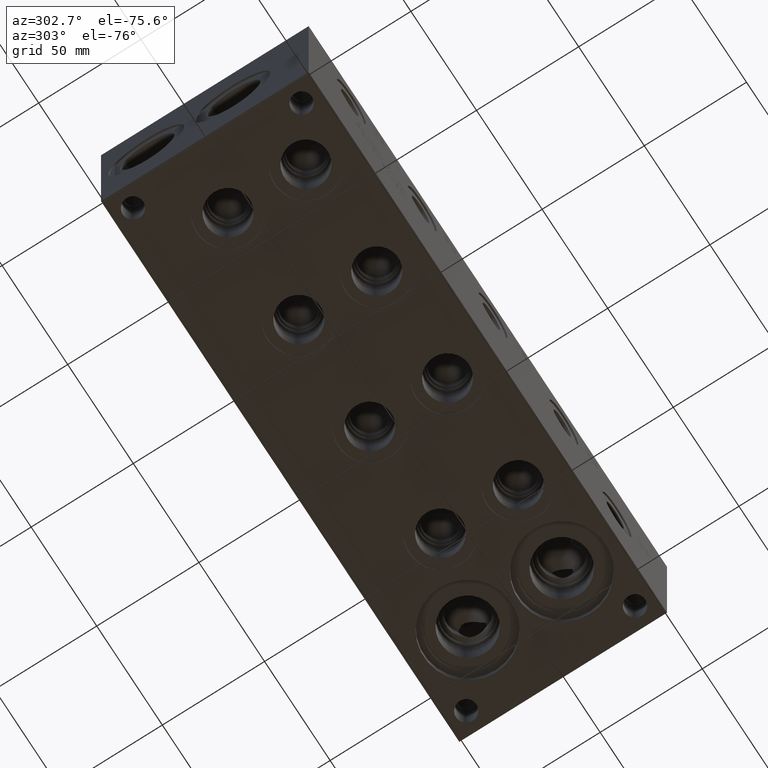
[diagram: clean part render]
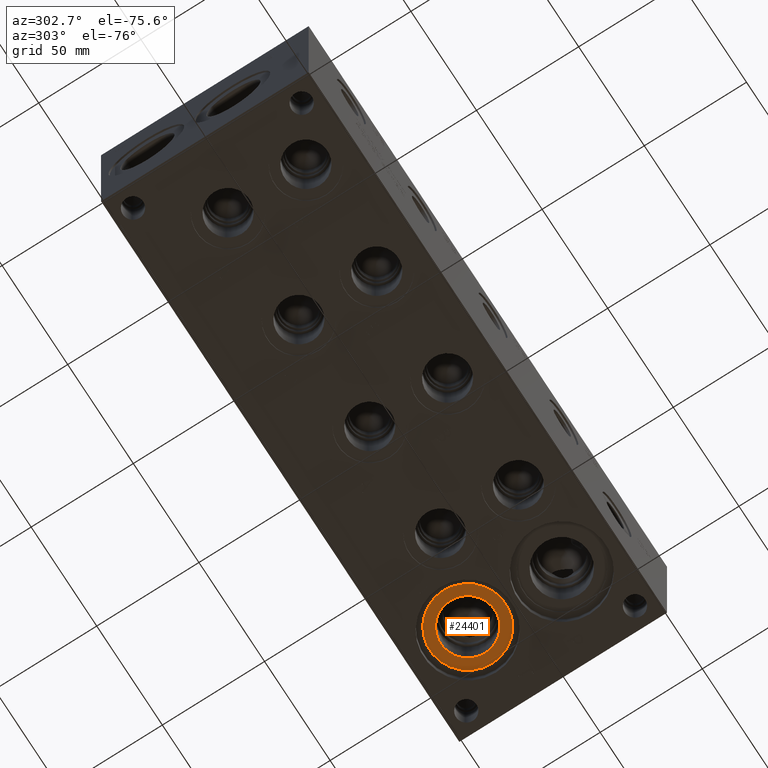
[diagram: same view with one face highlighted and labeled with its STEP entity id]
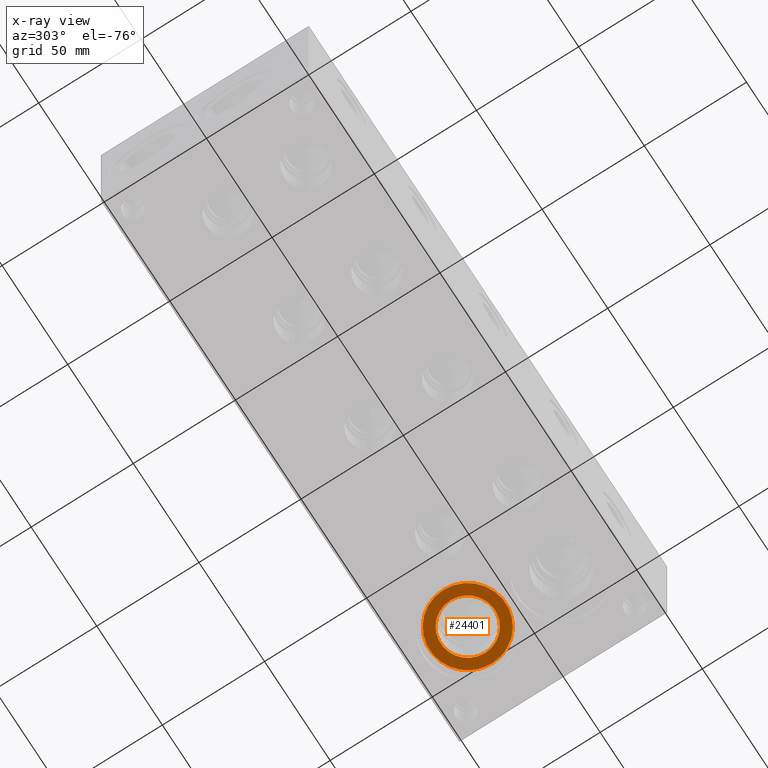
[diagram: x-ray of the same camera — body ghosted, the highlighted face saturated]
A machine part, auxiliary view. The second image highlights one B-rep face of the part: STEP entity #24401.
The next image is the same camera in x-ray: the body ghosted, the highlighted face saturated — about 0% of this face is hidden behind the body in this view.
In plain terms, the highlighted planar face has unit normal (0, 0, -1).
Its self-contained STEP definition (entity closure, byte-faithful):
#319=CIRCLE('',#25359,13.2715);
#346=CIRCLE('',#25402,18.5547);
#347=CIRCLE('',#25403,18.5547);
#951=FACE_BOUND('',#4568,.T.);
#3173=FACE_OUTER_BOUND('',#4567,.T.);
#4567=EDGE_LOOP('',(#20339,#20340));
#4568=EDGE_LOOP('',(#20341));
#10960=VERTEX_POINT('',#41608);
#10994=VERTEX_POINT('',#41793);
#10995=VERTEX_POINT('',#41795);
#14219=EDGE_CURVE('',#10960,#10960,#319,.T.);
#14269=EDGE_CURVE('',#10995,#10994,#346,.T.);
#14270=EDGE_CURVE('',#10994,#10995,#347,.T.);
#20339=ORIENTED_EDGE('',*,*,#14269,.T.);
#20340=ORIENTED_EDGE('',*,*,#14270,.T.);
#20341=ORIENTED_EDGE('',*,*,#14219,.T.);
#22435=PLANE('',#25404);
#24401=ADVANCED_FACE('',(#3173,#951),#22435,.T.);
#25359=AXIS2_PLACEMENT_3D('',#41609,#29343,#29344);
#25402=AXIS2_PLACEMENT_3D('',#41796,#29442,#29443);
#25403=AXIS2_PLACEMENT_3D('',#41797,#29444,#29445);
#25404=AXIS2_PLACEMENT_3D('',#41798,#29446,#29447);
#29343=DIRECTION('center_axis',(0.,0.,1.));
#29344=DIRECTION('ref_axis',(1.,0.,0.));
#29442=DIRECTION('center_axis',(0.,0.,-1.));
#29443=DIRECTION('ref_axis',(1.,0.,0.));
#29444=DIRECTION('center_axis',(0.,0.,-1.));
#29445=DIRECTION('ref_axis',(1.,0.,0.));
#29446=DIRECTION('center_axis',(0.,0.,-1.));
#29447=DIRECTION('ref_axis',(1.,0.,0.));
#41608=CARTESIAN_POINT('',(221.6785,73.025,5.5626));
#41609=CARTESIAN_POINT('Origin',(234.95,73.025,5.5626));
#41793=CARTESIAN_POINT('',(216.3953,73.025,5.5626));
#41795=CARTESIAN_POINT('',(253.5047,73.025,5.5626));
#41796=CARTESIAN_POINT('Origin',(234.95,73.025,5.5626));
#41797=CARTESIAN_POINT('Origin',(234.95,73.025,5.5626));
#41798=CARTESIAN_POINT('Origin',(234.95,73.025,5.5626));